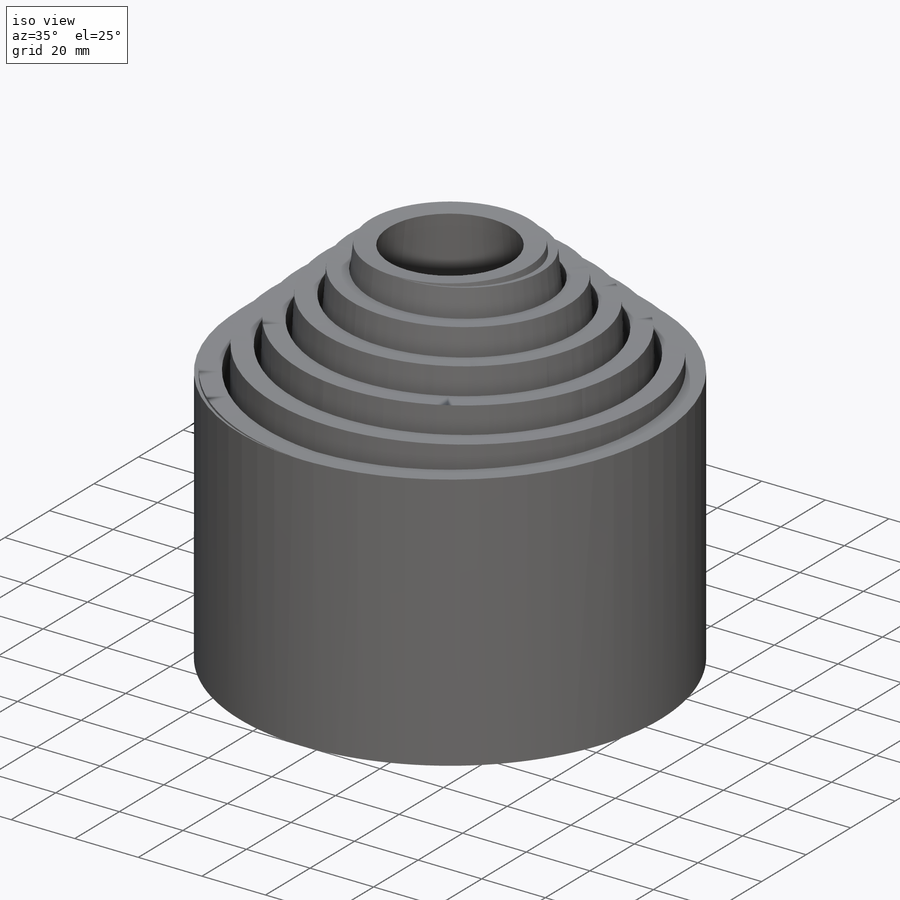
[diagram: iso view]
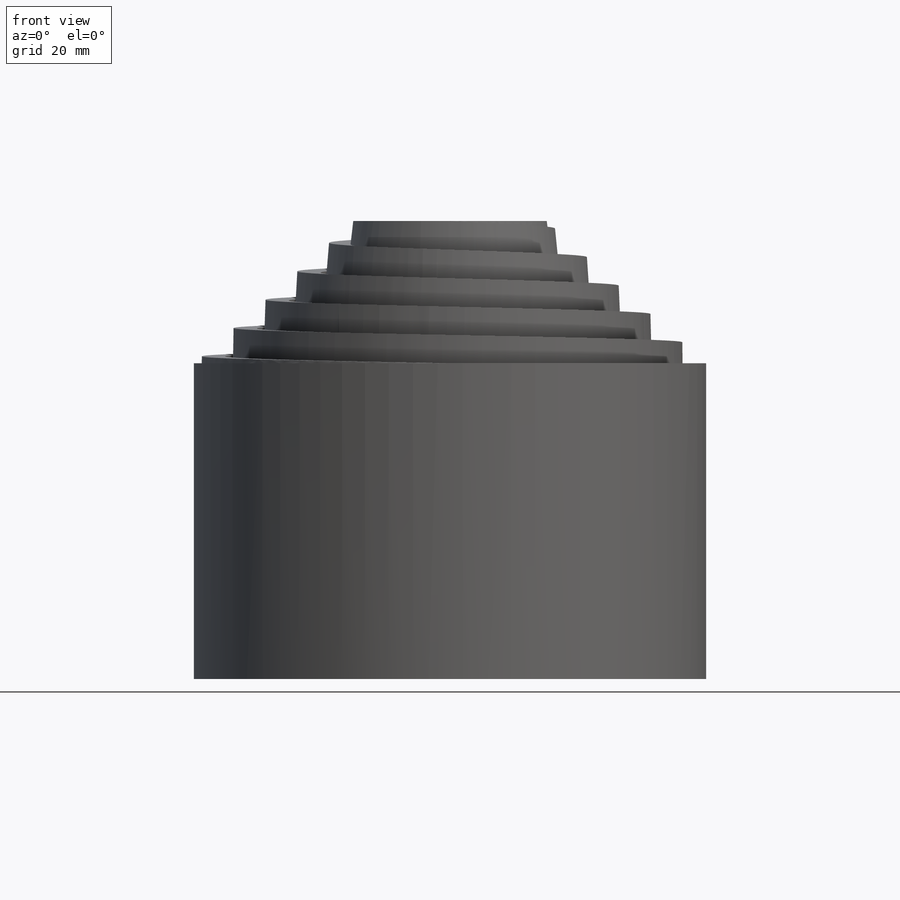
[diagram: front view]
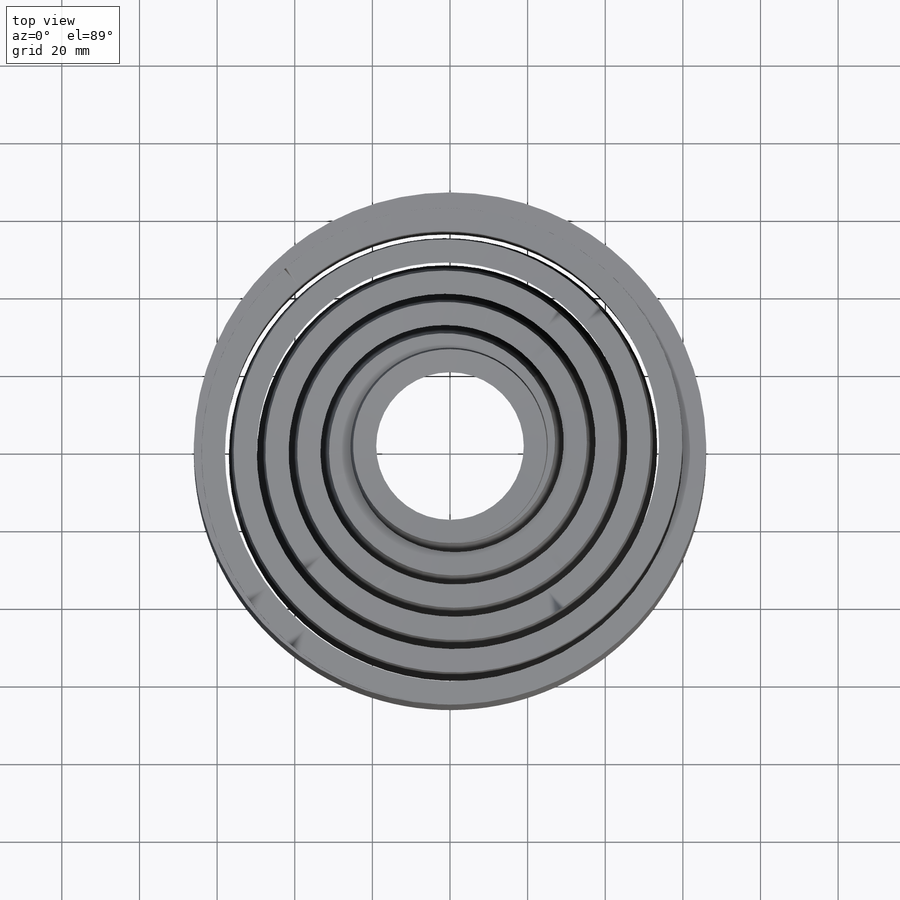
[diagram: top view]
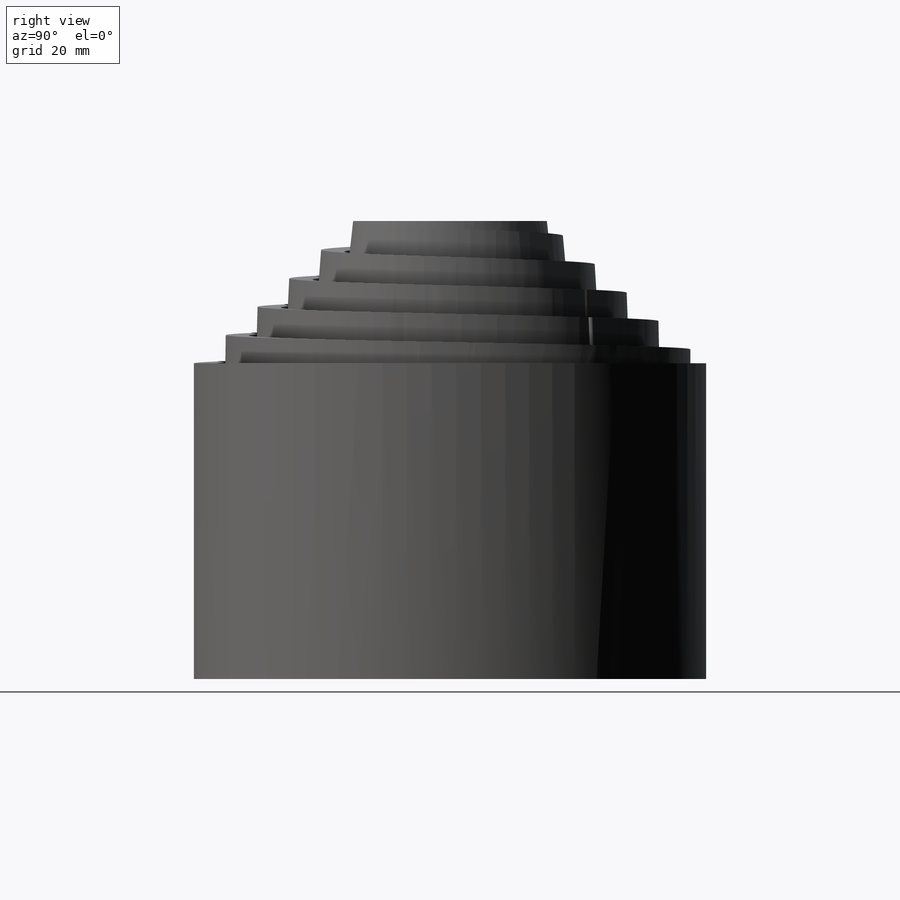
[diagram: right view]
SOLIDWORKS PART (.sldprt)
format: sldprt  version: not decoded by parser v0  size: 800,256 bytes
history: native  units: mm
features: sketch x5, plane x4, material x1, helix x1, revolve x1, extrude x1 (+9 scaffold rows collapsed)
feature tree (22):
  scaffold x9  (default folders/planes/origin — collapsed)
  material  "Material <nicht festgelegt>"
  plane  "Vorderansicht"
  plane  "Draufsicht"
  plane  "Seitenansicht"
  plane  "Ebene1"  Offset=80mm
  sketch  "Skizze3"  dims[c1.D1=38.0mm c1.D2=72.0mm c1.D3=120.0mm c1.D4=72.0mm c2.D4=~29.659109deg c2.D5=36.0mm c2.D6=72.0mm c3.D6=~48.715289deg]
  sketch  "Skizze4"
  helix  "Spirale/Helix2"  Pitch=72mm
  sketch  "Skizze2"  dims[c1.D1=120.0mm c1.Spirale/Helix1=0.0 c1.D3=36.0mm c1.D4=7.2mm c1.D5=5000.0mm c1.D6=48.71deg c1.D7=0.0deg c2.D1=6.0mm]
  sketch  "Skizze5"  dims[D1=0.0mm D2=0.0mm]
  revolve  "Rotation1"  Angle=360deg
  sketch  "Skizze6"  dims[D1=0.0mm]
  extrude  "Aufsatz-Linear austragen1"  Depth=1.3446mm
decode coverage: 7 of 8 modeling features carry decoded parameters
note: ~ marks probable driven/reference dimensions
note: suppression state not decoded; provenance and decode notes live in map.json
